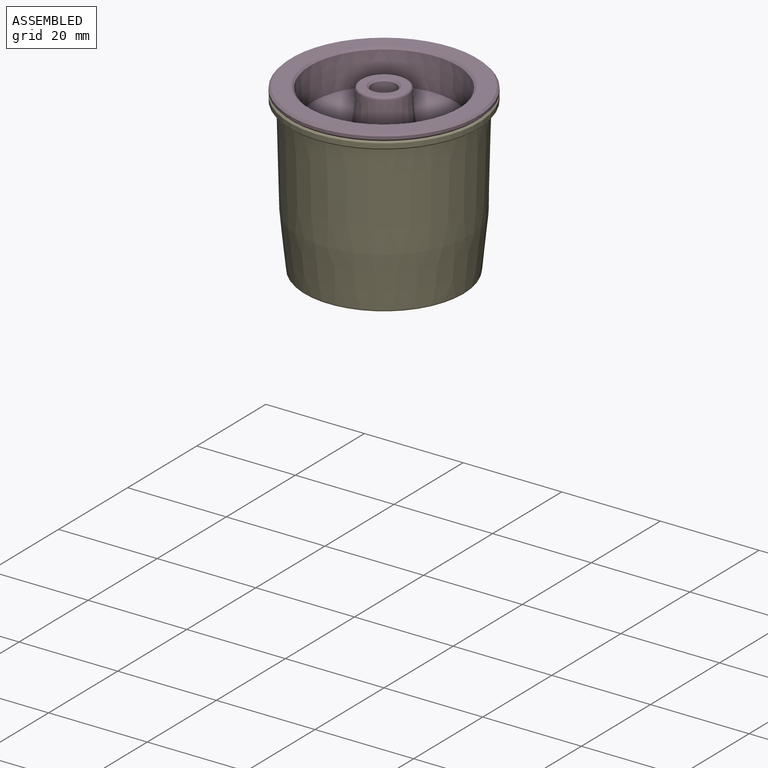
[diagram: assembled view]
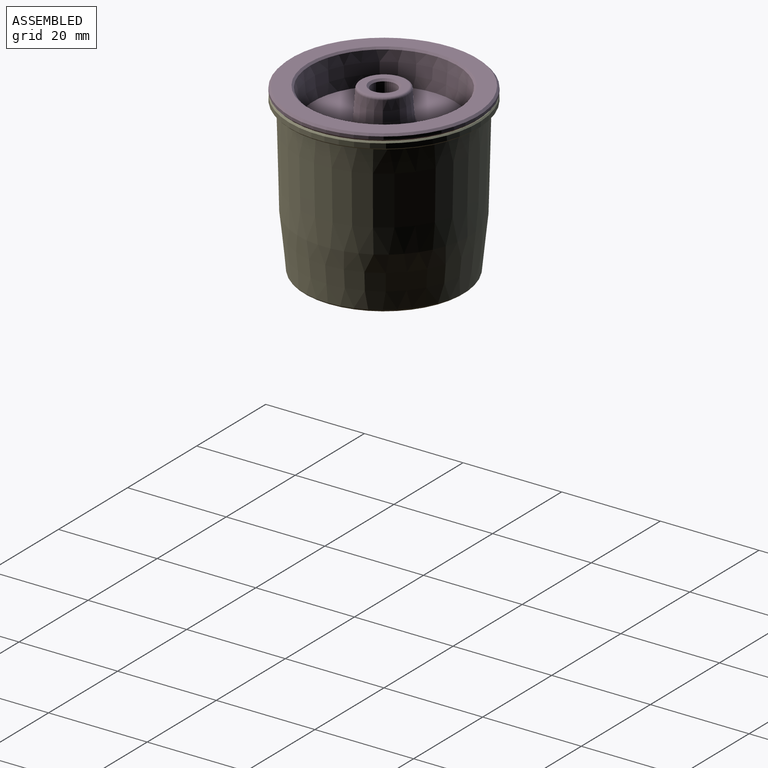
[diagram: assembled view, second angle]
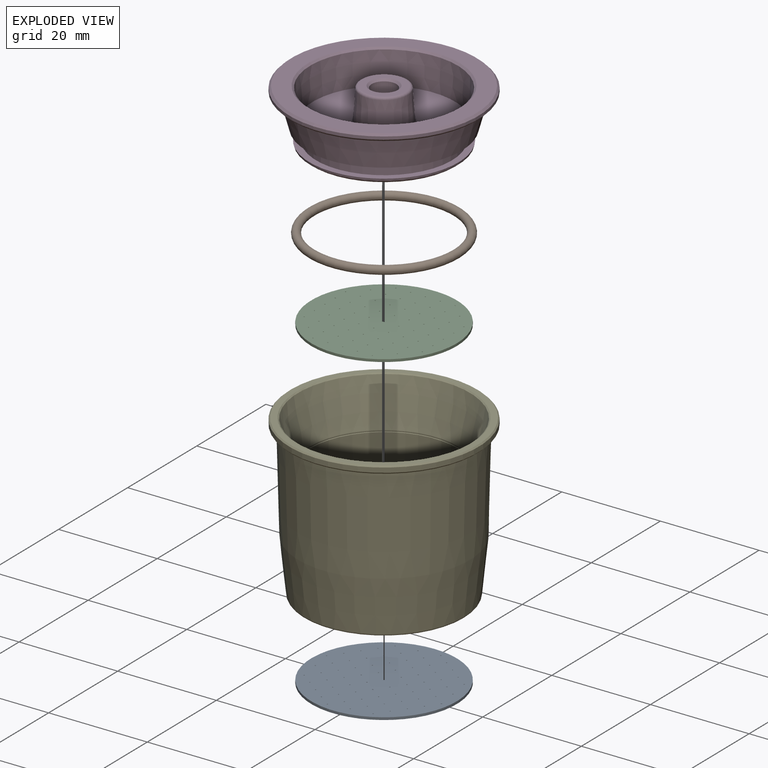
[diagram: exploded view]
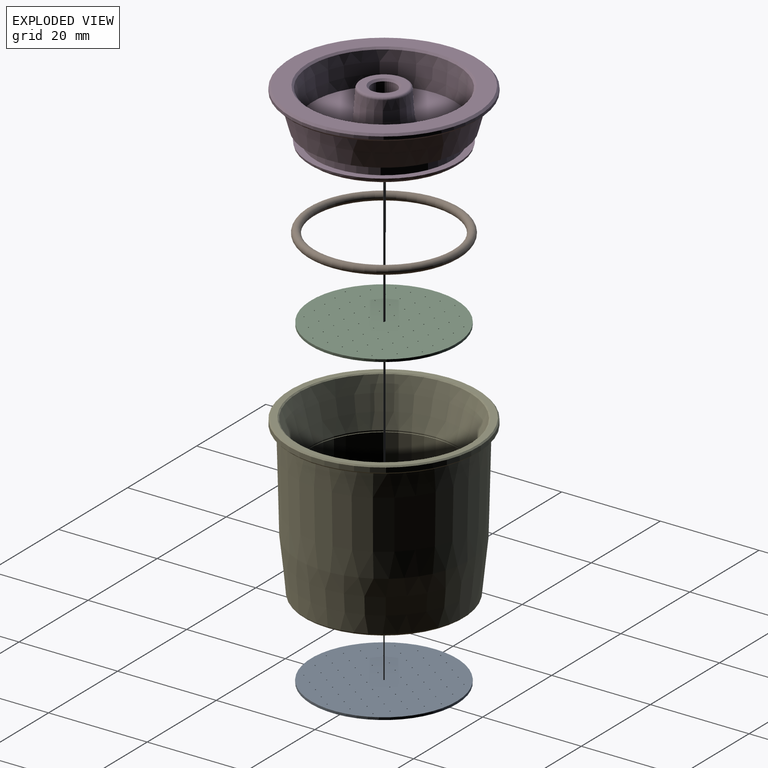
[diagram: exploded view, second angle]
ASSEMBLY  parts=5 mates=7
PART A: 72 faces, bbox 29.5x29.5x0.5 mm
  f0: cylinder r=14.75mm len=29.5mm, axis (0,0,-1), area 46.3mm2, adj f1,f2
  f1: plane 29.5x29.5mm, normal (0,0,1), area 681.3mm2, adj f0,f3,f4,f5,f6,f7,f8,f9
  f2: plane 29.5x29.5mm, normal (0,0,-1), area 681.3mm2, adj f0,f3,f4,f5,f6,f7,f8,f9
  f3: cylinder r=0.1mm len=0.5mm, axis (0,0,1), area 0.3mm2, adj f1,f2
  f4: cylinder r=0.1mm len=0.5mm, axis (0,0,1), area 0.3mm2, adj f1,f2
  f5: cylinder r=0.1mm len=0.5mm, axis (0,0,1), area 0.3mm2, adj f1,f2
  f6: cylinder r=0.1mm len=0.5mm, axis (0,0,1), area 0.3mm2, adj f1,f2
  f7: cylinder r=0.1mm len=0.5mm, axis (0,0,1), area 0.3mm2, adj f1,f2
  f8: cylinder r=0.1mm len=0.5mm, axis (0,0,1), area 0.3mm2, adj f1,f2
  f9: cylinder r=0.1mm len=0.5mm, axis (0,0,1), area 0.3mm2, adj f1,f2
  f10: cylinder r=0.1mm len=0.5mm, axis (0,0,1), area 0.3mm2, adj f1,f2
  f11: cylinder r=0.1mm len=0.5mm, axis (0,0,1), area 0.3mm2, adj f1,f2
  f12: cylinder r=0.1mm len=0.5mm, axis (0,0,1), area 0.3mm2, adj f1,f2
  f13: cylinder r=0.1mm len=0.5mm, axis (0,0,1), area 0.3mm2, adj f1,f2
  f14: cylinder r=0.1mm len=0.5mm, axis (0,0,1), area 0.3mm2, adj f1,f2
  f15: cylinder r=0.1mm len=0.5mm, axis (0,0,1), area 0.3mm2, adj f1,f2
  f16: cylinder r=0.1mm len=0.5mm, axis (0,0,1), area 0.3mm2, adj f1,f2
  f17: cylinder r=0.1mm len=0.5mm, axis (0,0,1), area 0.3mm2, adj f1,f2
  f18: cylinder r=0.1mm len=0.5mm, axis (0,0,1), area 0.3mm2, adj f1,f2
  f19: cylinder r=0.1mm len=0.5mm, axis (0,0,1), area 0.3mm2, adj f1,f2
  f20: cylinder r=0.1mm len=0.5mm, axis (0,0,1), area 0.3mm2, adj f1,f2
  f21: cylinder r=0.1mm len=0.5mm, axis (0,0,1), area 0.3mm2, adj f1,f2
  f22: cylinder r=0.1mm len=0.5mm, axis (0,0,1), area 0.3mm2, adj f1,f2
  f23: cylinder r=0.1mm len=0.5mm, axis (0,0,1), area 0.3mm2, adj f1,f2
  f24: cylinder r=0.1mm len=0.5mm, axis (0,0,1), area 0.3mm2, adj f1,f2
  f25: cylinder r=0.1mm len=0.5mm, axis (0,0,1), area 0.3mm2, adj f1,f2
  f26: cylinder r=0.1mm len=0.5mm, axis (0,0,1), area 0.3mm2, adj f1,f2
  f27: cylinder r=0.1mm len=0.5mm, axis (0,0,1), area 0.3mm2, adj f1,f2
  f28: cylinder r=0.1mm len=0.5mm, axis (0,0,1), area 0.3mm2, adj f1,f2
  f29: cylinder r=0.1mm len=0.5mm, axis (0,0,1), area 0.3mm2, adj f1,f2
  f30: cylinder r=0.1mm len=0.5mm, axis (0,0,1), area 0.3mm2, adj f1,f2
  f31: cylinder r=0.1mm len=0.5mm, axis (0,0,1), area 0.3mm2, adj f1,f2
  f32: cylinder r=0.1mm len=0.5mm, axis (0,0,1), area 0.3mm2, adj f1,f2
  f33: cylinder r=0.1mm len=0.5mm, axis (0,0,1), area 0.3mm2, adj f1,f2
  f34: cylinder r=0.1mm len=0.5mm, axis (0,0,1), area 0.3mm2, adj f1,f2
  f35: cylinder r=0.1mm len=0.5mm, axis (0,0,1), area 0.3mm2, adj f1,f2
  f36: cylinder r=0.1mm len=0.5mm, axis (0,0,1), area 0.3mm2, adj f1,f2
  f37: cylinder r=0.1mm len=0.5mm, axis (0,0,1), area 0.3mm2, adj f1,f2
  f38: cylinder r=0.1mm len=0.5mm, axis (0,0,1), area 0.3mm2, adj f1,f2
  f39: cylinder r=0.1mm len=0.5mm, axis (0,0,1), area 0.3mm2, adj f1,f2
  f40: cylinder r=0.1mm len=0.5mm, axis (0,0,1), area 0.3mm2, adj f1,f2
  f41: cylinder r=0.1mm len=0.5mm, axis (0,0,1), area 0.3mm2, adj f1,f2
  f42: cylinder r=0.1mm len=0.5mm, axis (0,0,1), area 0.3mm2, adj f1,f2
  f43: cylinder r=0.1mm len=0.5mm, axis (0,0,1), area 0.3mm2, adj f1,f2
  f44: cylinder r=0.1mm len=0.5mm, axis (0,0,1), area 0.3mm2, adj f1,f2
  f45: cylinder r=0.1mm len=0.5mm, axis (0,0,1), area 0.3mm2, adj f1,f2
  f46: cylinder r=0.1mm len=0.5mm, axis (0,0,1), area 0.3mm2, adj f1,f2
  f47: cylinder r=0.1mm len=0.5mm, axis (0,0,1), area 0.3mm2, adj f1,f2
  f48: cylinder r=0.1mm len=0.5mm, axis (0,0,1), area 0.3mm2, adj f1,f2
  f49: cylinder r=0.1mm len=0.5mm, axis (0,0,1), area 0.3mm2, adj f1,f2
  f50: cylinder r=0.1mm len=0.5mm, axis (0,0,1), area 0.3mm2, adj f1,f2
  f51: cylinder r=0.1mm len=0.5mm, axis (0,0,1), area 0.3mm2, adj f1,f2
  f52: cylinder r=0.1mm len=0.5mm, axis (0,0,1), area 0.3mm2, adj f1,f2
  f53: cylinder r=0.1mm len=0.5mm, axis (0,0,1), area 0.3mm2, adj f1,f2
  f54: cylinder r=0.1mm len=0.5mm, axis (0,0,1), area 0.3mm2, adj f1,f2
  f55: cylinder r=0.1mm len=0.5mm, axis (0,0,1), area 0.3mm2, adj f1,f2
  f56: cylinder r=0.1mm len=0.5mm, axis (0,0,1), area 0.3mm2, adj f1,f2
  f57: cylinder r=0.1mm len=0.5mm, axis (0,0,1), area 0.3mm2, adj f1,f2
  f58: cylinder r=0.1mm len=0.5mm, axis (0,0,1), area 0.3mm2, adj f1,f2
  f59: cylinder r=0.1mm len=0.5mm, axis (0,0,1), area 0.3mm2, adj f1,f2
  f60: cylinder r=0.1mm len=0.5mm, axis (0,0,1), area 0.3mm2, adj f1,f2
  f61: cylinder r=0.1mm len=0.5mm, axis (0,0,1), area 0.3mm2, adj f1,f2
  f62: cylinder r=0.1mm len=0.5mm, axis (0,0,1), area 0.3mm2, adj f1,f2
  f63: cylinder r=0.1mm len=0.5mm, axis (0,0,1), area 0.3mm2, adj f1,f2
  f64: cylinder r=0.1mm len=0.5mm, axis (0,0,1), area 0.3mm2, adj f1,f2
  f65: cylinder r=0.1mm len=0.5mm, axis (0,0,1), area 0.3mm2, adj f1,f2
  f66: cylinder r=0.1mm len=0.5mm, axis (0,0,1), area 0.3mm2, adj f1,f2
  f67: cylinder r=0.1mm len=0.5mm, axis (0,0,1), area 0.3mm2, adj f1,f2
  f68: cylinder r=0.1mm len=0.5mm, axis (0,0,1), area 0.3mm2, adj f1,f2
  f69: cylinder r=0.1mm len=0.5mm, axis (0,0,1), area 0.3mm2, adj f1,f2
  f70: cylinder r=0.1mm len=0.5mm, axis (0,0,1), area 0.3mm2, adj f1,f2
  f71: cylinder r=0.1mm len=0.5mm, axis (0,0,1), area 0.3mm2, adj f1,f2
PART B: 1 faces, bbox 33.4x33.4x1.7 mm
  f0: torus R=14.62mm, axis (0,0,-1), area 476.3mm2
PART C: same geometry as A
PART D: 23 faces, bbox 38.4x38.4x11 mm
  f0: cylinder r=2.5mm len=9.6mm, axis (0,0,-1), area 150.8mm2, adj f17,f21
  f1: plane 8.57x8.57mm, normal (0,0,1), area 31.3mm2, adj f17,f19
  f2: plane 28.76x28.76mm, normal (0,0,-1), area 269.3mm2, adj f20,f22
  f3: cone r=15.14mm half-angle=15deg, axis (0,0,1), area 49.3mm2, adj f4,f22
  f4: plane 30.28x30.28mm, normal (0,0,1), area 122mm2, adj f3,f5
  f5: cylinder r=13.8mm len=27.6mm, axis (0,0,-1), area 199.4mm2, adj f4,f6
  f6: plane 31.52x31.52mm, normal (0,0,-1), area 181.8mm2, adj f5,f7
  f7: cone r=17.45mm half-angle=15deg, axis (0,0,1), area 682mm2, adj f6,f8
  f8: plane 37.6x37.6mm, normal (0,0,-1), area 153.7mm2, adj f7,f14
  f9: cylinder r=19.2mm len=38.4mm, axis (0,0,-1), area 72.4mm2, adj f14,f15
  f10: plane 37.6x37.6mm, normal (0,0,1), area 368.5mm2, adj f15,f16
  f11: cone r=14.41mm half-angle=5deg, axis (0,0,1), area 596.1mm2, adj f12,f16
  f12: plane 28.81x28.81mm, normal (0,0,1), area 549.3mm2, adj f11,f18
  f13: cone r=4.75mm half-angle=4.2deg, axis (0,0,-1), area 185mm2, adj f18,f19
  f14: cone r=18.8mm half-angle=45deg, axis (0,0,1), area 67.5mm2, adj f8,f9
  f15: cone r=19.2mm half-angle=45deg, axis (0,0,-1), area 67.5mm2, adj f9,f10
  f16: cone r=15.37mm half-angle=47.5deg, axis (0,0,1), area 51.5mm2, adj f10,f11
  f17: cone r=2.9mm half-angle=45deg, axis (0,0,1), area 9.6mm2, adj f0,f1
  f18: torus R=5.71mm, axis (0,0,-1), area 25.4mm2, adj f12,f13
  f19: torus R=4.29mm, axis (0,0,-1), area 21.6mm2, adj f1,f13
  f20: cylinder r=11mm len=22mm, axis (0,0,-1), area 69.1mm2, adj f2,f21
  f21: plane 22x22mm, normal (0,0,-1), area 360.5mm2, adj f0,f20
  f22: cone r=14.38mm half-angle=52.5deg, axis (0,0,1), area 73.2mm2, adj f2,f3
PART E: 22 faces, bbox 38.4x38.4x33.6 mm
  f0: cylinder r=15mm len=30mm, axis (0,0,-1), area 16mm2, adj f13,f18
  f1: cylinder r=15mm len=30mm, axis (0,0,-1), area 1592.8mm2, adj f14,f18
  f2: cylinder r=2.5mm len=6mm, axis (0,0,-1), area 94.2mm2, adj f3,f16
  f3: plane 9x9mm, normal (0,0,-1), area 44mm2, adj f2,f4
  f4: cylinder r=4.5mm len=9mm, axis (0,0,-1), area 127.2mm2, adj f3,f5
  f5: plane 20x20mm, normal (0,0,-1), area 250.5mm2, adj f4,f6
  f6: cylinder r=10mm len=20mm, axis (0,0,-1), area 282.7mm2, adj f5,f7
  f7: cone r=10mm half-angle=80deg, axis (0,0,1), area 485.3mm2, adj f6,f17
  f8: cone r=16.25mm half-angle=6deg, axis (0,0,1), area 1130.7mm2, adj f9,f17
  f9: cone r=17.4mm half-angle=1.4deg, axis (0,0,1), area 2218.4mm2, adj f8,f10
  f10: plane 37.88x37.88mm, normal (0,0,-1), area 120.3mm2, adj f9,f20
  f11: cylinder r=19.2mm len=38.4mm, axis (0,0,-1), area 118.1mm2, adj f19,f20
  f12: plane 37.88x37.88mm, normal (0,0,1), area 142.7mm2, adj f19,f21
  f13: cone r=17.5mm half-angle=15deg, axis (0,0,1), area 964.3mm2, adj f0,f21
  f14: plane 30x30mm, normal (0,0,1), area 254.5mm2, adj f1,f15
  f15: cylinder r=12mm len=24mm, axis (0,0,-1), area 75.4mm2, adj f14,f16
  f16: plane 24x24mm, normal (0,0,1), area 432.8mm2, adj f2,f15
  f17: torus R=15.79mm, axis (0,0,1), area 65.5mm2, adj f7,f8
  f18: torus R=15mm, axis (0,0,1), area 29.7mm2, adj f0,f1
  f19: cone r=19.2mm half-angle=45deg, axis (0,0,-1), area 44.2mm2, adj f11,f12
  f20: cone r=18.94mm half-angle=45deg, axis (0,0,1), area 44.2mm2, adj f10,f11
  f21: cone r=17.7mm half-angle=52.5deg, axis (0,0,1), area 35mm2, adj f12,f13
PLACE A rot(axis=(0,0,1),53.8deg) t=(0,0,7.25)mm
PLACE B rot(axis=(0,0,-1),10.2deg) t=(0,0,26.14)mm
PLACE C t=(0,0,23.75)mm
PLACE D rot(axis=(0,0,-1),10.2deg) t=(0,0,24)mm
PLACE E at identity fixed
MATE planar A.f0 <-> E.f0  axis (0,0,-1) through (0,0,7)mm
MATE cylindrical C.f0 <-> D.f0  axis (0,0,-1) through (0,0,23.5)mm
MATE planar C.f0 <-> D.f0  axis (0,0,1) through (0,0,24)mm
MATE cylindrical E.f0 <-> D.f0  axis (0,0,1) through (0,0,22.1)mm
MATE cylindrical A.f0 <-> E.f0  axis (0,0,1) through (0,0,7.5)mm
MATE fastened B.f0 <-> D.f0  axis (0,0,-1) through (0,0,26.14)mm
MATE planar E.f0 <-> D.f0  axis (0,0,1) through (0,0,33.6)mm
